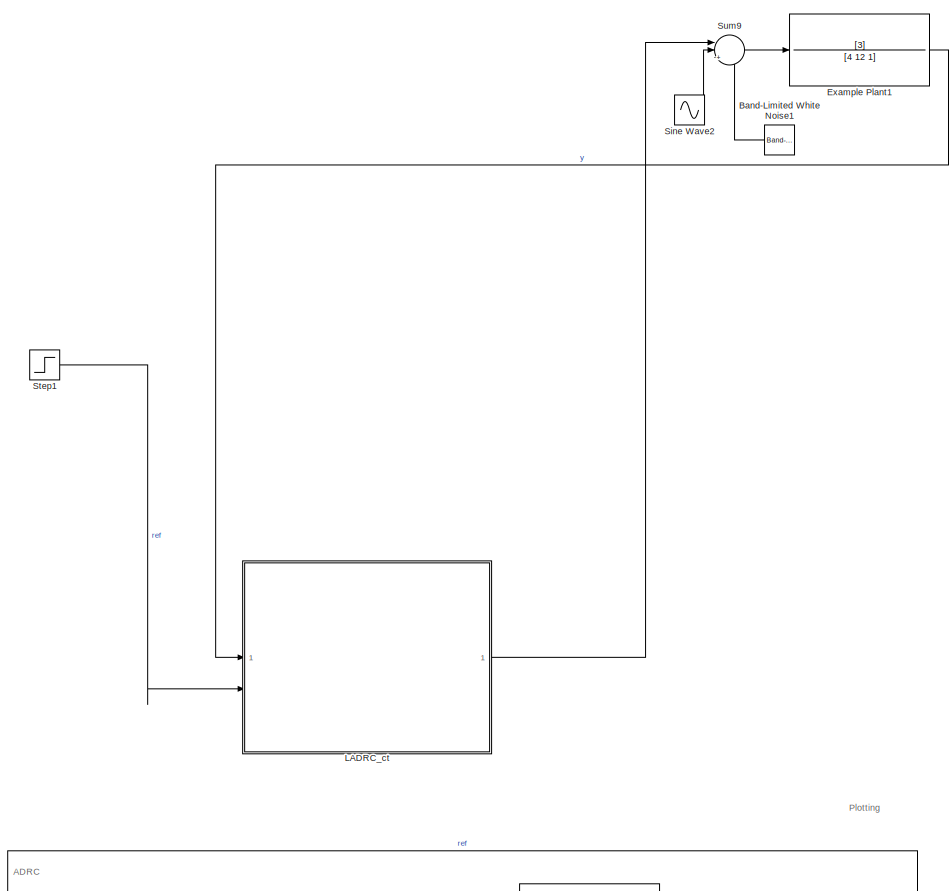
[diagram: root canvas - part 1/2, full width, middle band]
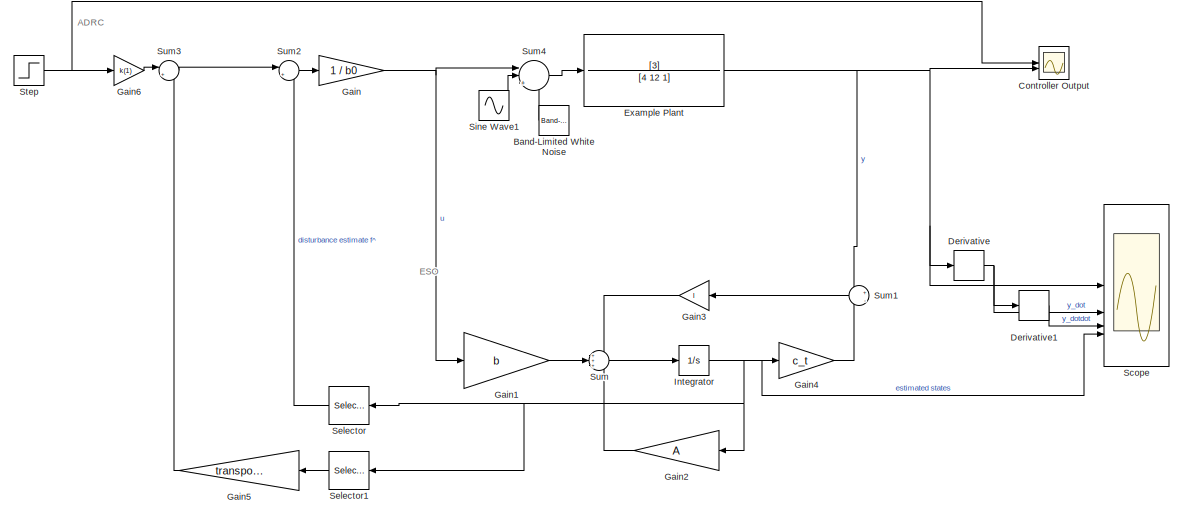
[diagram: root canvas - part 2/2, full width, bottom band]
MODEL slx_9908be78997a
KIND model
CONFIG AbsTol = auto
CONFIG EnableMultiTasking = off
CONFIG FixedStep = auto
CONFIG MaxStep = auto
CONFIG MinStep = auto
CONFIG RelTol = 1e-3
CONFIG SampleTimeConstraint = Unconstrained
CONFIG SolverName = VariableStepAuto
CONFIG StartTime = 0.0
CONFIG StopTime = 10.0
BLOCK [TransferFcn]  Example Plant
  Denominator = [4 12 1]
  Numerator = [3]
BLOCK [TransferFcn]  Example Plant1
  Commented = on
  Denominator = [4 12 1]
  Numerator = [3]
BLOCK [Reference] Band-Limited White Noise  REF=simulink/Sources/Band-Limited
White Noise
  NameLocation = top
  SourceBlock = simulink/Sources/Band-Limited\nWhite Noise
  SourceType = Band-Limited White Noise.
BLOCK [Reference] Band-Limited White Noise1  REF=simulink/Sources/Band-Limited
White Noise
  Commented = on
  NameLocation = top
  SourceBlock = simulink/Sources/Band-Limited\nWhite Noise
  SourceType = Band-Limited White Noise.
BLOCK [Scope] Controller Output
  Floating = off
  NumInputPorts = 2
  ScopeSpecificationString = Simulink.scopes.TimeScopeBlockCfg('CurrentConfiguration', extmgr.ConfigurationSet(extmgr.Configuration('Core','General UI',true),extmgr.Configuration('Core','Source UI',true),extmgr.Configuration('Sources','WiredSimulink',true),extmgr.Configuration('Visuals','Time Domain',true,'SerializedDisplays',{struct('MinYLimReal','-0.125','MaxYLimReal','1.125','YLabelReal','','MinYLimMag','0.00000','MaxYLimM...<+1460ch>
BLOCK [Derivative] Derivative
BLOCK [Derivative] Derivative1
BLOCK [Gain] Gain
  Gain = 1 / b0
BLOCK [Gain] Gain1
  Gain = b
  Multiplication = Matrix(K*u)
BLOCK [Gain] Gain2
  Gain = A
  Multiplication = Matrix(K*u)
  NameLocation = top
BLOCK [Gain] Gain3
  Gain = l
  NameLocation = top
BLOCK [Gain] Gain4
  Gain = c_t
  Multiplication = Matrix(K*u)
BLOCK [Gain] Gain5
  Gain = transpose(k)
  Multiplication = Matrix(K*u)
  NameLocation = top
BLOCK [Gain] Gain6
  Gain = k(1)
BLOCK [Integrator] Integrator
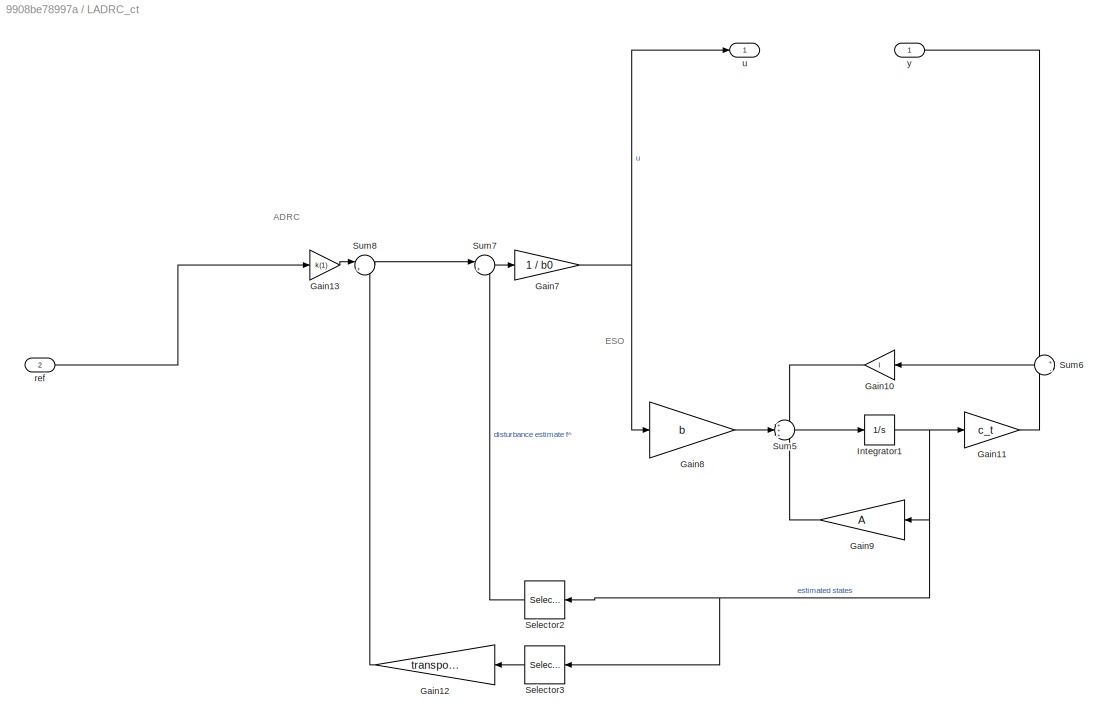
BLOCK [SubSystem] LADRC_ct
  Commented = on
BLOCK [Gain] LADRC_ct/Gain10
  Gain = l
  NameLocation = top
BLOCK [Gain] LADRC_ct/Gain11
  Gain = c_t
  Multiplication = Matrix(K*u)
BLOCK [Gain] LADRC_ct/Gain12
  Gain = transpose(k)
  Multiplication = Matrix(K*u)
  NameLocation = top
BLOCK [Gain] LADRC_ct/Gain13
  Gain = k(1)
BLOCK [Gain] LADRC_ct/Gain7
  Gain = 1 / b0
BLOCK [Gain] LADRC_ct/Gain8
  Gain = b
  Multiplication = Matrix(K*u)
BLOCK [Gain] LADRC_ct/Gain9
  Gain = A
  Multiplication = Matrix(K*u)
  NameLocation = top
BLOCK [Integrator] LADRC_ct/Integrator1
BLOCK [Selector] LADRC_ct/Selector2
  IndexOptions = Index vector (dialog)
  Indices = [N+1]
  InputPortWidth = N+1
  NameLocation = top
  OutputSizes = 1
BLOCK [Selector] LADRC_ct/Selector3
  IndexOptions = Index vector (dialog)
  Indices = [1:N]
  InputPortWidth = N+1
  NameLocation = top
  OutputSizes = 1
BLOCK [Sum] LADRC_ct/Sum5
  Inputs = +++
BLOCK [Sum] LADRC_ct/Sum6
  Inputs = +|-
  NameLocation = top
BLOCK [Sum] LADRC_ct/Sum7
  Inputs = |+-
BLOCK [Sum] LADRC_ct/Sum8
  Inputs = |+-
BLOCK [Inport] LADRC_ct/ref
  Port = 2
BLOCK [Outport] LADRC_ct/u
BLOCK [Inport] LADRC_ct/y
BLOCK [Scope] Scope
  Floating = off
  NumInputPorts = 4
  ScopeSpecificationString = Simulink.scopes.TimeScopeBlockCfg('CurrentConfiguration', extmgr.ConfigurationSet(extmgr.Configuration('Core','General UI',true),extmgr.Configuration('Core','Source UI',true),extmgr.Configuration('Sources','WiredSimulink',true,'DataLoggingVariableName','ScopeData1'),extmgr.Configuration('Visuals','Time Domain',true,'SerializedDisplays',{struct('MinYLimReal','-354885845.36925','MaxYLimReal','509618...<+1810ch>
BLOCK [Selector] Selector
  IndexOptions = Index vector (dialog)
  Indices = [N+1]
  InputPortWidth = N+1
  NameLocation = top
  OutputSizes = 1
BLOCK [Selector] Selector1
  IndexOptions = Index vector (dialog)
  Indices = [1:N]
  InputPortWidth = N+1
  NameLocation = top
  OutputSizes = 1
BLOCK [Sin] Sine Wave1
  Amplitude = 0
  Frequency = 60
  SampleTime = 0
BLOCK [Sin] Sine Wave2
  Amplitude = 2
  Commented = on
  Frequency = 60
  SampleTime = 0
BLOCK [Step] Step
  SampleTime = 0
BLOCK [Step] Step1
  Commented = on
  SampleTime = 0
BLOCK [Sum] Sum
  Inputs = +++
BLOCK [Sum] Sum1
  Inputs = +|-
  NameLocation = top
BLOCK [Sum] Sum2
  Inputs = |+-
BLOCK [Sum] Sum3
  Inputs = |+-
BLOCK [Sum] Sum4
  Inputs = ||+++
BLOCK [Sum] Sum9
  Commented = on
  Inputs = ||+++
ANNOTATION (root): ADRC
ANNOTATION (root): ESO
ANNOTATION (root): Plotting
ANNOTATION LADRC_ct: ADRC
ANNOTATION LADRC_ct: ESO
LINE  Example Plant1:1 -> LADRC_ct:1
NET  Example Plant:1 -> Controller Output:2, Derivative:1, Scope:1, Sum1:1
LINE Band-Limited White Noise1:1 -> Sum9:3
LINE Band-Limited White Noise:1 -> Sum4:3
LINE Derivative1:1 -> Scope:3
NET Derivative:1 -> Derivative1:1, Scope:2
LINE Gain1:1 -> Sum:2
LINE Gain2:1 -> Sum:3
LINE Gain3:1 -> Sum:1
LINE Gain4:1 -> Sum1:2
LINE Gain5:1 -> Sum3:2
LINE Gain6:1 -> Sum3:1
NET Gain:1 -> Gain1:1, Sum4:1
NET Integrator:1 -> Gain2:1, Gain4:1, Scope:4, Selector1:1, Selector:1
LINE LADRC_ct/Gain10:1 -> LADRC_ct/Sum5:1
LINE LADRC_ct/Gain11:1 -> LADRC_ct/Sum6:2
LINE LADRC_ct/Gain12:1 -> LADRC_ct/Sum8:2
LINE LADRC_ct/Gain13:1 -> LADRC_ct/Sum8:1
NET LADRC_ct/Gain7:1 -> LADRC_ct/Gain8:1, LADRC_ct/u:1
LINE LADRC_ct/Gain8:1 -> LADRC_ct/Sum5:2
LINE LADRC_ct/Gain9:1 -> LADRC_ct/Sum5:3
NET LADRC_ct/Integrator1:1 -> LADRC_ct/Gain11:1, LADRC_ct/Gain9:1, LADRC_ct/Selector2:1, LADRC_ct/Selector3:1
LINE LADRC_ct/Selector2:1 -> LADRC_ct/Sum7:2
LINE LADRC_ct/Selector3:1 -> LADRC_ct/Gain12:1
LINE LADRC_ct/Sum5:1 -> LADRC_ct/Integrator1:1
LINE LADRC_ct/Sum6:1 -> LADRC_ct/Gain10:1
LINE LADRC_ct/Sum7:1 -> LADRC_ct/Gain7:1
LINE LADRC_ct/Sum8:1 -> LADRC_ct/Sum7:1
LINE LADRC_ct/ref:1 -> LADRC_ct/Gain13:1
LINE LADRC_ct/y:1 -> LADRC_ct/Sum6:1
LINE LADRC_ct:1 -> Sum9:1
LINE Selector1:1 -> Gain5:1
LINE Selector:1 -> Sum2:2
LINE Sine Wave1:1 -> Sum4:2
LINE Sine Wave2:1 -> Sum9:2
LINE Step1:1 -> LADRC_ct:2
NET Step:1 -> Controller Output:1, Gain6:1
LINE Sum1:1 -> Gain3:1
LINE Sum2:1 -> Gain:1
LINE Sum3:1 -> Sum2:1
LINE Sum4:1 ->  Example Plant:1
LINE Sum9:1 ->  Example Plant1:1
LINE Sum:1 -> Integrator:1
note: NET lines group one-source signal fan-out (src -> all destinations, sorted); 1:1 wires keep LINE
